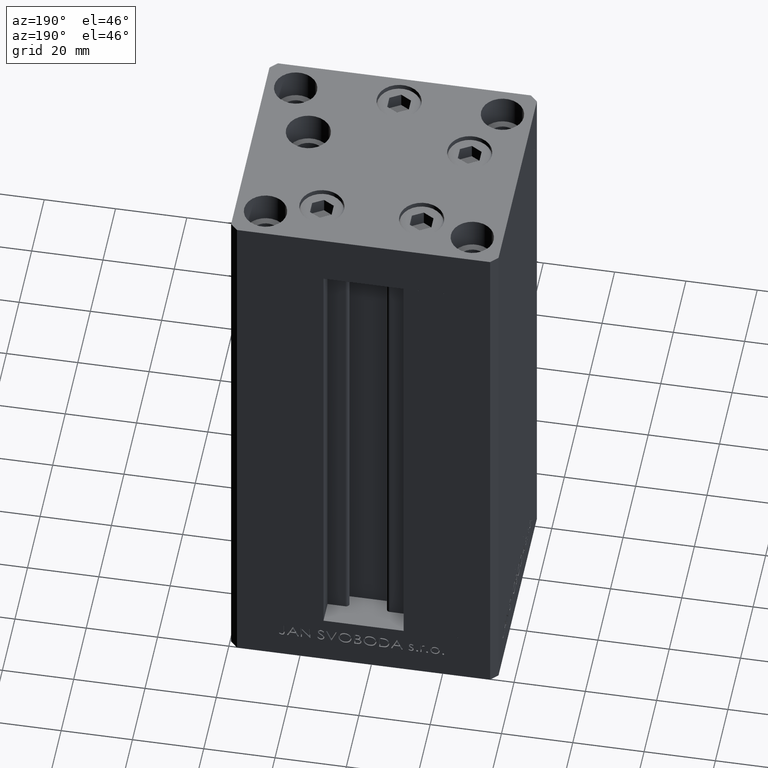
[diagram: clean part render]
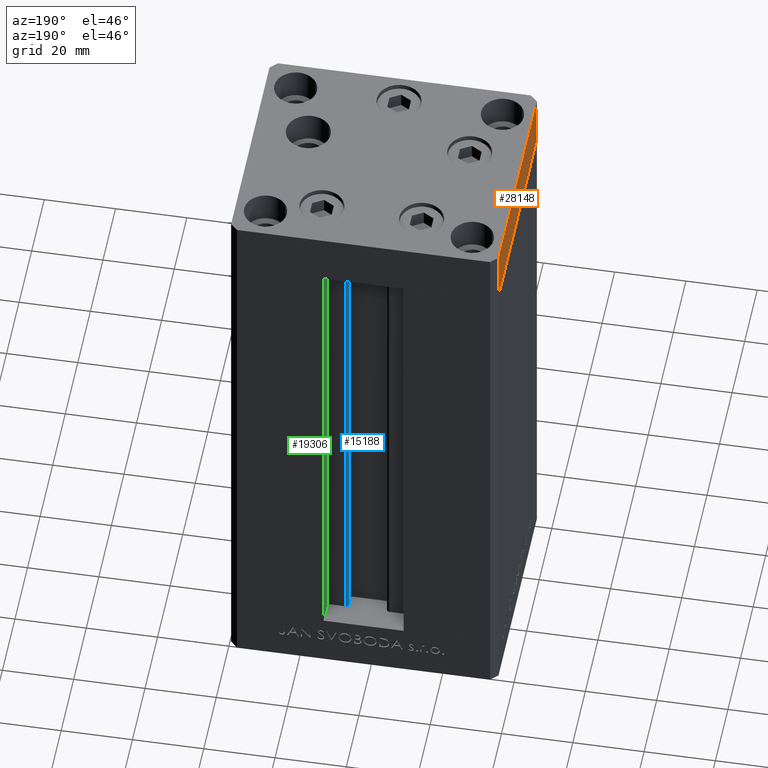
[diagram: same view with three faces highlighted in distinct colors, each labeled with its STEP entity id]
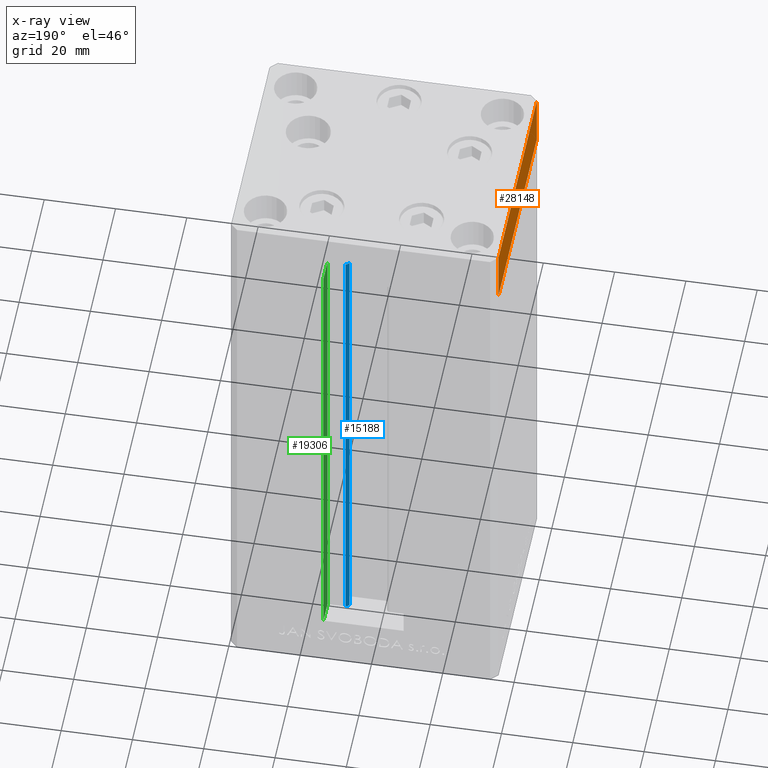
[diagram: x-ray of the same camera — body ghosted, the three highlighted faces saturated]
A machine part, auxiliary view with three faces highlighted in distinct colors.
The next image is the same camera in x-ray (body ghosted, the three faces saturated) — at least one of them is partly hidden behind the body in this view.
Their STEP definitions:

[orange] entity #28148 — the highlighted planar face has unit normal (-1, -0, 0).
#651 = CARTESIAN_POINT ( 'NONE',  ( -37.50000000000001421, 30.49999999999998579, 0.000000000000000000 ) ) ;
#1103 = CARTESIAN_POINT ( 'NONE',  ( -37.50000000000001421, 30.49999999999998579, -15.00000000000000000 ) ) ;
#5008 = AXIS2_PLACEMENT_3D ( 'NONE', #47459, #28655, #28901 ) ;
#5543 = EDGE_CURVE ( 'NONE', #41912, #41570, #20492, .T. ) ;
#5887 = CARTESIAN_POINT ( 'NONE',  ( -37.49999999999998579, -30.50000000000001421, -15.00000000000000000 ) ) ;
#9570 = ORIENTED_EDGE ( 'NONE', *, *, #42501, .F. ) ;
#9614 = FACE_OUTER_BOUND ( 'NONE', #48072, .T. ) ;
#12708 = LINE ( 'NONE', #1103, #43641 ) ;
#16215 = DIRECTION ( 'NONE',  ( 0.000000000000000000, 0.000000000000000000, 1.000000000000000000 ) ) ;
#19357 = EDGE_CURVE ( 'NONE', #41076, #41570, #26000, .T. ) ;
#19584 = VECTOR ( 'NONE', #16215, 1000.000000000000000 ) ;
#19769 = VECTOR ( 'NONE', #29727, 1000.000000000000000 ) ;
#20492 = LINE ( 'NONE', #46960, #24694 ) ;
#22295 = CARTESIAN_POINT ( 'NONE',  ( -37.50000000000001421, 30.49999999999998579, 0.000000000000000000 ) ) ;
#24694 = VECTOR ( 'NONE', #29134, 1000.000000000000000 ) ;
#25451 = CARTESIAN_POINT ( 'NONE',  ( -37.49999999999998579, -30.50000000000001421, 0.000000000000000000 ) ) ;
#25791 = EDGE_CURVE ( 'NONE', #38399, #41912, #12708, .T. ) ;
#26000 = LINE ( 'NONE', #22295, #19769 ) ;
#26114 = LINE ( 'NONE', #33784, #19584 ) ;
#28148 = ADVANCED_FACE ( 'NONE', ( #9614 ), #39795, .T. ) ;
#28655 = DIRECTION ( 'NONE',  ( -1.000000000000000000, -4.550094363217855288E-16, 0.000000000000000000 ) ) ;
#28901 = DIRECTION ( 'NONE',  ( 4.550094363217855288E-16, -1.000000000000000000, 0.000000000000000000 ) ) ;
#29134 = DIRECTION ( 'NONE',  ( 0.000000000000000000, 0.000000000000000000, 1.000000000000000000 ) ) ;
#29727 = DIRECTION ( 'NONE',  ( 4.550094363217855288E-16, -1.000000000000000000, 0.000000000000000000 ) ) ;
#31079 = ORIENTED_EDGE ( 'NONE', *, *, #25791, .T. ) ;
#32331 = ORIENTED_EDGE ( 'NONE', *, *, #19357, .F. ) ;
#33784 = CARTESIAN_POINT ( 'NONE',  ( -37.50000000000001421, 30.49999999999998579, -15.00000000000000000 ) ) ;
#38399 = VERTEX_POINT ( 'NONE', #48662 ) ;
#39795 = PLANE ( 'NONE',  #5008 ) ;
#41076 = VERTEX_POINT ( 'NONE', #651 ) ;
#41570 = VERTEX_POINT ( 'NONE', #25451 ) ;
#41912 = VERTEX_POINT ( 'NONE', #5887 ) ;
#42485 = ORIENTED_EDGE ( 'NONE', *, *, #5543, .T. ) ;
#42501 = EDGE_CURVE ( 'NONE', #38399, #41076, #26114, .T. ) ;
#43641 = VECTOR ( 'NONE', #46850, 1000.000000000000000 ) ;
#46850 = DIRECTION ( 'NONE',  ( 4.550094363217855288E-16, -1.000000000000000000, 0.000000000000000000 ) ) ;
#46960 = CARTESIAN_POINT ( 'NONE',  ( -37.49999999999998579, -30.50000000000001421, -15.00000000000000000 ) ) ;
#47459 = CARTESIAN_POINT ( 'NONE',  ( -37.50000000000001421, 30.49999999999998579, -15.00000000000000000 ) ) ;
#48072 = EDGE_LOOP ( 'NONE', ( #32331, #9570, #31079, #42485 ) ) ;
#48662 = CARTESIAN_POINT ( 'NONE',  ( -37.50000000000001421, 30.49999999999998579, -15.00000000000000000 ) ) ;

[blue] entity #15188 — the highlighted cylindrical surface (edge-blend (fillet) strip) has radius 0.9333 mm, axis along (0, 0, 1).
#20 = ORIENTED_EDGE ( 'NONE', *, *, #4420, .F. ) ;
#1237 = VECTOR ( 'NONE', #2570, 1000.000000000000000 ) ;
#2570 = DIRECTION ( 'NONE',  ( -0.000000000000000000, -0.000000000000000000, 1.000000000000000000 ) ) ;
#3426 = ORIENTED_EDGE ( 'NONE', *, *, #21728, .F. ) ;
#4420 = EDGE_CURVE ( 'NONE', #18686, #4434, #37815, .T. ) ;
#4434 = VERTEX_POINT ( 'NONE', #14825 ) ;
#7201 = AXIS2_PLACEMENT_3D ( 'NONE', #13905, #40601, #45032 ) ;
#10050 = CARTESIAN_POINT ( 'NONE',  ( 6.183333333334001480, 25.06666666666599141, 0.000000000000000000 ) ) ;
#10470 = CARTESIAN_POINT ( 'NONE',  ( 5.375042956467947164, 24.59999999999899245, 0.000000000000000000 ) ) ;
#11168 = CARTESIAN_POINT ( 'NONE',  ( 5.375042956467947164, 24.59999999999899245, 0.000000000000000000 ) ) ;
#13905 = CARTESIAN_POINT ( 'NONE',  ( 6.183333333334001480, 25.06666666666599141, 0.000000000000000000 ) ) ;
#14825 = CARTESIAN_POINT ( 'NONE',  ( 6.183333333334001480, 25.99999999999999289, 136.0000000000000000 ) ) ;
#15050 = DIRECTION ( 'NONE',  ( -0.000000000000000000, -0.000000000000000000, 1.000000000000000000 ) ) ;
#15188 = ADVANCED_FACE ( 'NONE', ( #21651 ), #48140, .T. ) ;
#15474 = EDGE_CURVE ( 'NONE', #31851, #24449, #36448, .T. ) ;
#18686 = VERTEX_POINT ( 'NONE', #25204 ) ;
#21651 = FACE_OUTER_BOUND ( 'NONE', #25991, .T. ) ;
#21728 = EDGE_CURVE ( 'NONE', #31851, #18686, #22204, .T. ) ;
#22204 = CIRCLE ( 'NONE', #7201, 0.9333333333340008142 ) ;
#22303 = CARTESIAN_POINT ( 'NONE',  ( 6.183333333334001480, 25.06666666666599141, 136.0000000000000000 ) ) ;
#24449 = VERTEX_POINT ( 'NONE', #46905 ) ;
#25204 = CARTESIAN_POINT ( 'NONE',  ( 6.183333333334001480, 25.99999999999999289, 0.000000000000000000 ) ) ;
#25991 = EDGE_LOOP ( 'NONE', ( #20, #3426, #38485, #46141 ) ) ;
#26559 = AXIS2_PLACEMENT_3D ( 'NONE', #22303, #45298, #30205 ) ;
#28629 = VECTOR ( 'NONE', #15050, 1000.000000000000000 ) ;
#30205 = DIRECTION ( 'NONE',  ( 1.000000000000000000, 0.000000000000000000, 0.000000000000000000 ) ) ;
#31851 = VERTEX_POINT ( 'NONE', #11168 ) ;
#33592 = AXIS2_PLACEMENT_3D ( 'NONE', #10050, #47897, #40946 ) ;
#33849 = CARTESIAN_POINT ( 'NONE',  ( 6.183333333334001480, 25.99999999999999289, 0.000000000000000000 ) ) ;
#36448 = LINE ( 'NONE', #10470, #1237 ) ;
#37815 = LINE ( 'NONE', #33849, #28629 ) ;
#38485 = ORIENTED_EDGE ( 'NONE', *, *, #15474, .T. ) ;
#39189 = EDGE_CURVE ( 'NONE', #24449, #4434, #47916, .T. ) ;
#40601 = DIRECTION ( 'NONE',  ( -0.000000000000000000, -0.000000000000000000, -1.000000000000000000 ) ) ;
#40946 = DIRECTION ( 'NONE',  ( 1.000000000000000000, 0.000000000000000000, 0.000000000000000000 ) ) ;
#45032 = DIRECTION ( 'NONE',  ( 1.000000000000000000, 0.000000000000000000, 0.000000000000000000 ) ) ;
#45298 = DIRECTION ( 'NONE',  ( 0.000000000000000000, 0.000000000000000000, -1.000000000000000000 ) ) ;
#46141 = ORIENTED_EDGE ( 'NONE', *, *, #39189, .T. ) ;
#46905 = CARTESIAN_POINT ( 'NONE',  ( 5.375042956467948052, 24.59999999999899245, 136.0000000000000000 ) ) ;
#47897 = DIRECTION ( 'NONE',  ( -0.000000000000000000, -0.000000000000000000, 1.000000000000000000 ) ) ;
#47916 = CIRCLE ( 'NONE', #26559, 0.9333333333340008142 ) ;
#48140 = CYLINDRICAL_SURFACE ( 'NONE', #33592, 0.9333333333340008142 ) ;

[green] entity #19306 — the highlighted planar face has unit normal (1, 0, 0).
#684 = EDGE_CURVE ( 'NONE', #44611, #5561, #25899, .T. ) ;
#1280 = DIRECTION ( 'NONE',  ( -0.000000000000000000, -1.000000000000000000, 0.000000000000000000 ) ) ;
#2485 = VECTOR ( 'NONE', #33567, 1000.000000000000000 ) ;
#5561 = VERTEX_POINT ( 'NONE', #48914 ) ;
#6799 = CARTESIAN_POINT ( 'NONE',  ( 11.24999999999999467, 32.49999999999999289, 136.0000000000000000 ) ) ;
#7113 = CARTESIAN_POINT ( 'NONE',  ( 11.25000000000000178, 25.99999999999999289, 0.000000000000000000 ) ) ;
#9224 = FACE_OUTER_BOUND ( 'NONE', #33304, .T. ) ;
#10142 = VERTEX_POINT ( 'NONE', #6799 ) ;
#11813 = ORIENTED_EDGE ( 'NONE', *, *, #45611, .T. ) ;
#12629 = CARTESIAN_POINT ( 'NONE',  ( 11.25000000000000178, 0.000000000000000000, 136.0000000000000000 ) ) ;
#14361 = CARTESIAN_POINT ( 'NONE',  ( 11.25000000000000178, 32.49999999999999289, 0.000000000000000000 ) ) ;
#17748 = ORIENTED_EDGE ( 'NONE', *, *, #25931, .F. ) ;
#19306 = ADVANCED_FACE ( 'NONE', ( #9224 ), #27761, .F. ) ;
#19508 = CARTESIAN_POINT ( 'NONE',  ( 11.25000000000000178, 25.99999999999999289, 136.0000000000000000 ) ) ;
#19795 = VERTEX_POINT ( 'NONE', #19508 ) ;
#20353 = CARTESIAN_POINT ( 'NONE',  ( 11.25000000000000178, 25.99999999999999289, 0.000000000000000000 ) ) ;
#20923 = CARTESIAN_POINT ( 'NONE',  ( 11.25000000000000178, 25.99999999999999289, 0.000000000000000000 ) ) ;
#22750 = LINE ( 'NONE', #14361, #30240 ) ;
#23034 = LINE ( 'NONE', #12629, #24665 ) ;
#24665 = VECTOR ( 'NONE', #1280, 1000.000000000000000 ) ;
#25287 = LINE ( 'NONE', #33207, #25964 ) ;
#25899 = LINE ( 'NONE', #7113, #2485 ) ;
#25931 = EDGE_CURVE ( 'NONE', #10142, #19795, #23034, .T. ) ;
#25964 = VECTOR ( 'NONE', #37157, 1000.000000000000000 ) ;
#26991 = EDGE_CURVE ( 'NONE', #5561, #10142, #22750, .T. ) ;
#27761 = PLANE ( 'NONE',  #30814 ) ;
#29444 = DIRECTION ( 'NONE',  ( -0.000000000000000000, -0.000000000000000000, 1.000000000000000000 ) ) ;
#30240 = VECTOR ( 'NONE', #29444, 1000.000000000000000 ) ;
#30814 = AXIS2_PLACEMENT_3D ( 'NONE', #20353, #42118, #45827 ) ;
#33207 = CARTESIAN_POINT ( 'NONE',  ( 11.25000000000000178, 25.99999999999999289, 0.000000000000000000 ) ) ;
#33304 = EDGE_LOOP ( 'NONE', ( #45177, #44442, #11813, #17748 ) ) ;
#33567 = DIRECTION ( 'NONE',  ( 0.000000000000000000, 1.000000000000000000, 0.000000000000000000 ) ) ;
#37157 = DIRECTION ( 'NONE',  ( -0.000000000000000000, -0.000000000000000000, 1.000000000000000000 ) ) ;
#42118 = DIRECTION ( 'NONE',  ( 1.000000000000000000, -0.000000000000000000, 0.000000000000000000 ) ) ;
#44442 = ORIENTED_EDGE ( 'NONE', *, *, #684, .F. ) ;
#44611 = VERTEX_POINT ( 'NONE', #20923 ) ;
#45177 = ORIENTED_EDGE ( 'NONE', *, *, #26991, .F. ) ;
#45611 = EDGE_CURVE ( 'NONE', #44611, #19795, #25287, .T. ) ;
#45827 = DIRECTION ( 'NONE',  ( 0.000000000000000000, 0.000000000000000000, -1.000000000000000000 ) ) ;
#48914 = CARTESIAN_POINT ( 'NONE',  ( 11.25000000000000178, 32.49999999999999289, 0.000000000000000000 ) ) ;